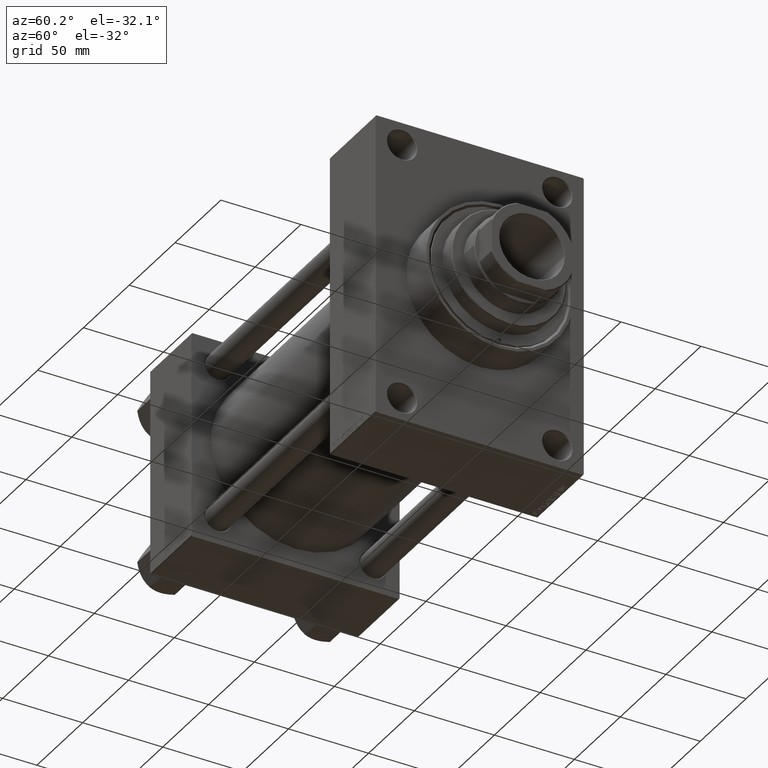
[diagram: clean part render]
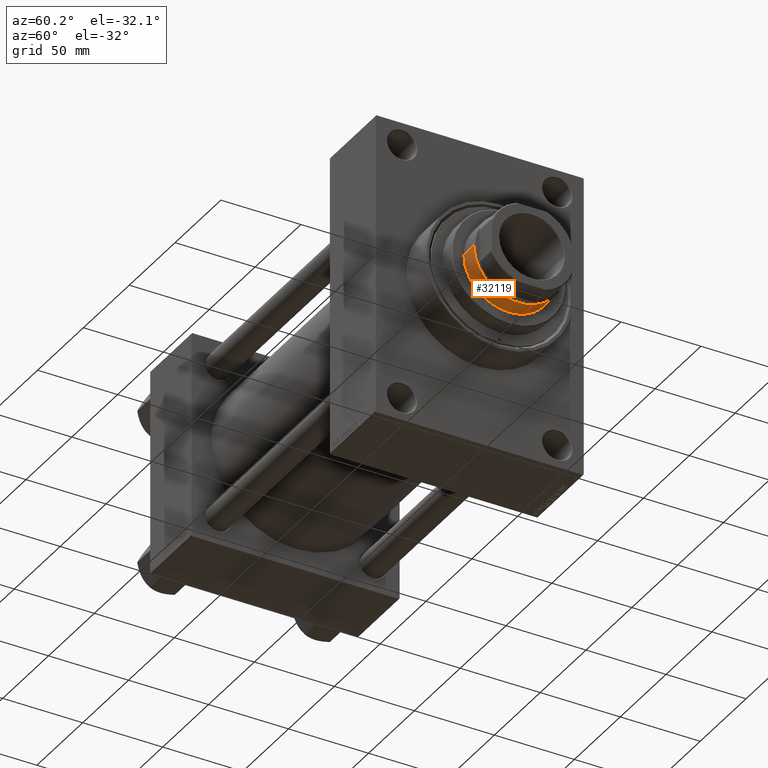
[diagram: same view with one face highlighted and labeled with its STEP entity id]
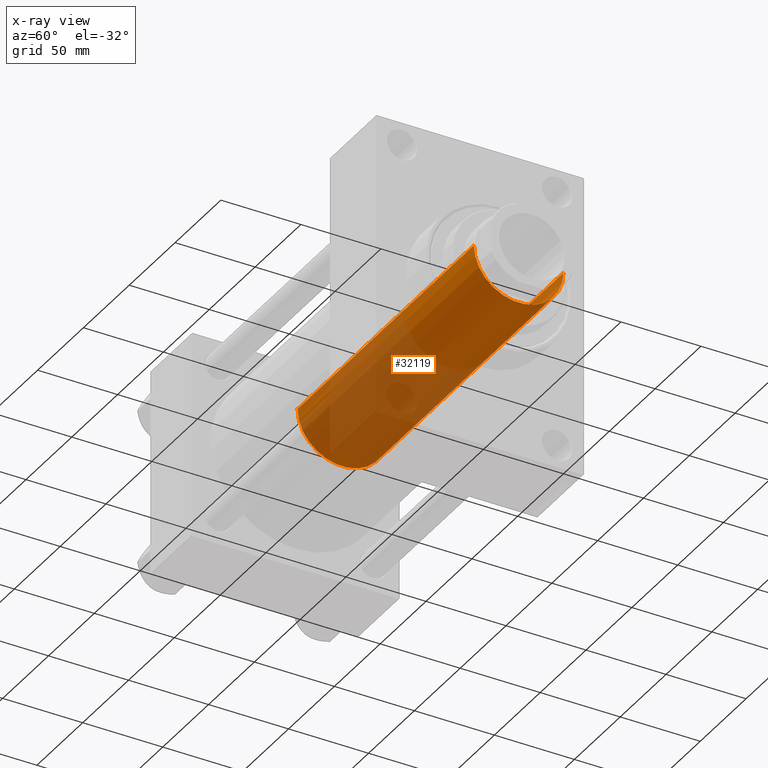
[diagram: x-ray of the same camera — body ghosted, the highlighted face saturated]
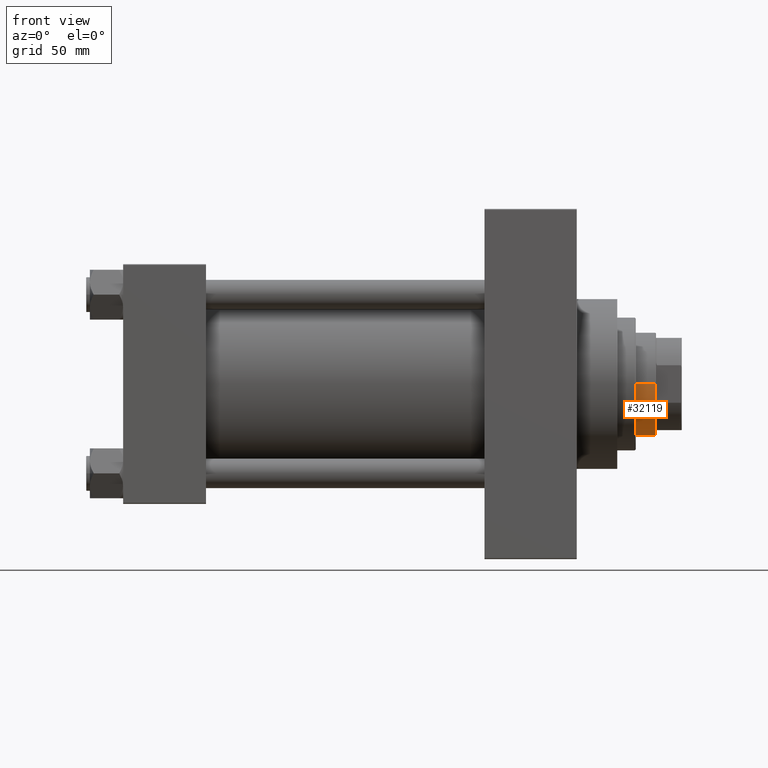
[diagram: same view with one face highlighted and labeled with its STEP entity id]
A machine part, auxiliary view. The second image highlights one B-rep face of the part: STEP entity #32119.
The next image is the same camera in x-ray: the body ghosted, the highlighted face saturated — about 57% of this face is hidden behind the body in this view.
A second angle (front view) of the same face is appended — the face is thin or edge-on in the first view.
In plain terms, the highlighted cylindrical surface (partial cylindrical patch) has radius 28 mm, axis along (-1, 0, 0).
Its self-contained STEP definition (entity closure, byte-faithful):
#30 = VERTEX_POINT ( 'NONE', #23445 ) ;
#1212 = DIRECTION ( 'NONE',  ( -0.000000000000000000, -0.000000000000000000, -1.000000000000000000 ) ) ;
#2257 = CIRCLE ( 'NONE', #11452, 28.00000000000000000 ) ;
#3216 = DIRECTION ( 'NONE',  ( 0.000000000000000000, 0.000000000000000000, -1.000000000000000000 ) ) ;
#3593 = DIRECTION ( 'NONE',  ( -1.000000000000000000, 0.000000000000000000, 0.000000000000000000 ) ) ;
#6410 = VERTEX_POINT ( 'NONE', #19777 ) ;
#8047 = VECTOR ( 'NONE', #1212, 1000.000000000000000 ) ;
#8699 = AXIS2_PLACEMENT_3D ( 'NONE', #18163, #32961, #3593 ) ;
#9059 = DIRECTION ( 'NONE',  ( 1.000000000000000000, 0.000000000000000000, 0.000000000000000000 ) ) ;
#9208 = ORIENTED_EDGE ( 'NONE', *, *, #27527, .F. ) ;
#9453 = EDGE_CURVE ( 'NONE', #30, #30509, #27174, .T. ) ;
#11452 = AXIS2_PLACEMENT_3D ( 'NONE', #16577, #24348, #9059 ) ;
#13898 = DIRECTION ( 'NONE',  ( 1.000000000000000000, 0.000000000000000000, 0.000000000000000000 ) ) ;
#13981 = VERTEX_POINT ( 'NONE', #45410 ) ;
#15397 = LINE ( 'NONE', #30216, #27124 ) ;
#16577 = CARTESIAN_POINT ( 'NONE',  ( 0.000000000000000000, 0.000000000000000000, 51.00000000000000000 ) ) ;
#17144 = CIRCLE ( 'NONE', #30339, 28.00000000000000000 ) ;
#17548 = CARTESIAN_POINT ( 'NONE',  ( 0.000000000000000000, 0.000000000000000000, 243.5000000000000000 ) ) ;
#18163 = CARTESIAN_POINT ( 'NONE',  ( 0.000000000000000000, 0.000000000000000000, 244.0000000000000000 ) ) ;
#19777 = CARTESIAN_POINT ( 'NONE',  ( -28.00000000000000000, 0.000000000000000000, 51.00000000000000000 ) ) ;
#22118 = EDGE_CURVE ( 'NONE', #30509, #6410, #2257, .T. ) ;
#22274 = FACE_OUTER_BOUND ( 'NONE', #29766, .T. ) ;
#23445 = CARTESIAN_POINT ( 'NONE',  ( 28.00000000000000000, 3.429011037612589276E-15, 243.5000000000000000 ) ) ;
#24348 = DIRECTION ( 'NONE',  ( 0.000000000000000000, 0.000000000000000000, 1.000000000000000000 ) ) ;
#27124 = VECTOR ( 'NONE', #44972, 1000.000000000000000 ) ;
#27174 = LINE ( 'NONE', #34449, #8047 ) ;
#27527 = EDGE_CURVE ( 'NONE', #13981, #6410, #15397, .T. ) ;
#28413 = ORIENTED_EDGE ( 'NONE', *, *, #22118, .T. ) ;
#29766 = EDGE_LOOP ( 'NONE', ( #31082, #46490, #28413, #9208 ) ) ;
#30216 = CARTESIAN_POINT ( 'NONE',  ( -28.00000000000000000, 0.000000000000000000, 244.0000000000000000 ) ) ;
#30339 = AXIS2_PLACEMENT_3D ( 'NONE', #17548, #3216, #13898 ) ;
#30509 = VERTEX_POINT ( 'NONE', #38902 ) ;
#30629 = EDGE_CURVE ( 'NONE', #13981, #30, #17144, .T. ) ;
#31082 = ORIENTED_EDGE ( 'NONE', *, *, #30629, .T. ) ;
#32119 = ADVANCED_FACE ( 'NONE', ( #22274 ), #36834, .T. ) ;
#32961 = DIRECTION ( 'NONE',  ( -0.000000000000000000, -0.000000000000000000, -1.000000000000000000 ) ) ;
#34449 = CARTESIAN_POINT ( 'NONE',  ( 28.00000000000000000, 3.429011037612589276E-15, 244.0000000000000000 ) ) ;
#36834 = CYLINDRICAL_SURFACE ( 'NONE', #8699, 28.00000000000000000 ) ;
#38902 = CARTESIAN_POINT ( 'NONE',  ( 28.00000000000000000, 3.429011037612589276E-15, 51.00000000000000000 ) ) ;
#44972 = DIRECTION ( 'NONE',  ( -0.000000000000000000, -0.000000000000000000, -1.000000000000000000 ) ) ;
#45410 = CARTESIAN_POINT ( 'NONE',  ( -28.00000000000000000, 0.000000000000000000, 243.5000000000000000 ) ) ;
#46490 = ORIENTED_EDGE ( 'NONE', *, *, #9453, .T. ) ;